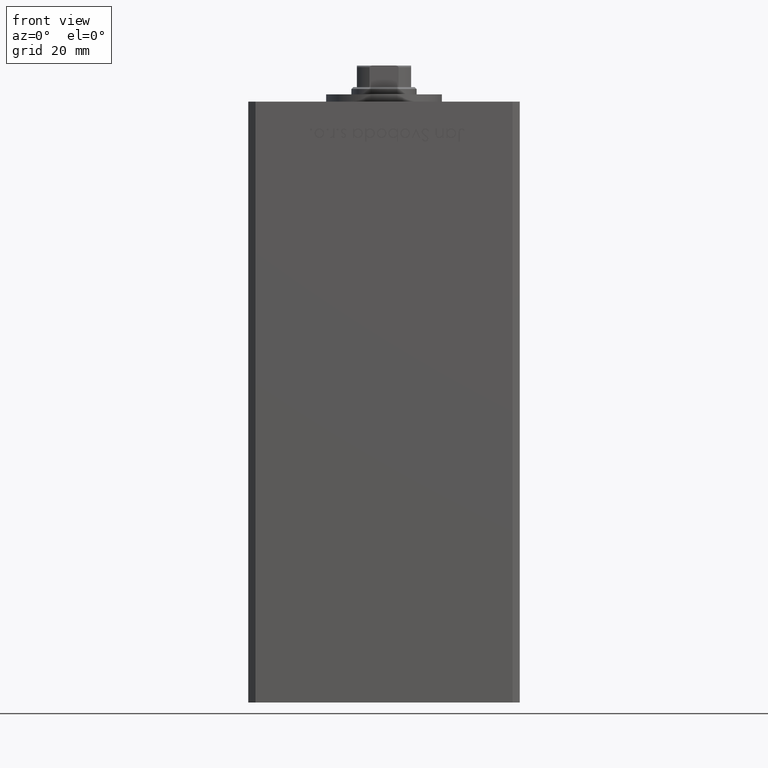
[diagram: clean part render]
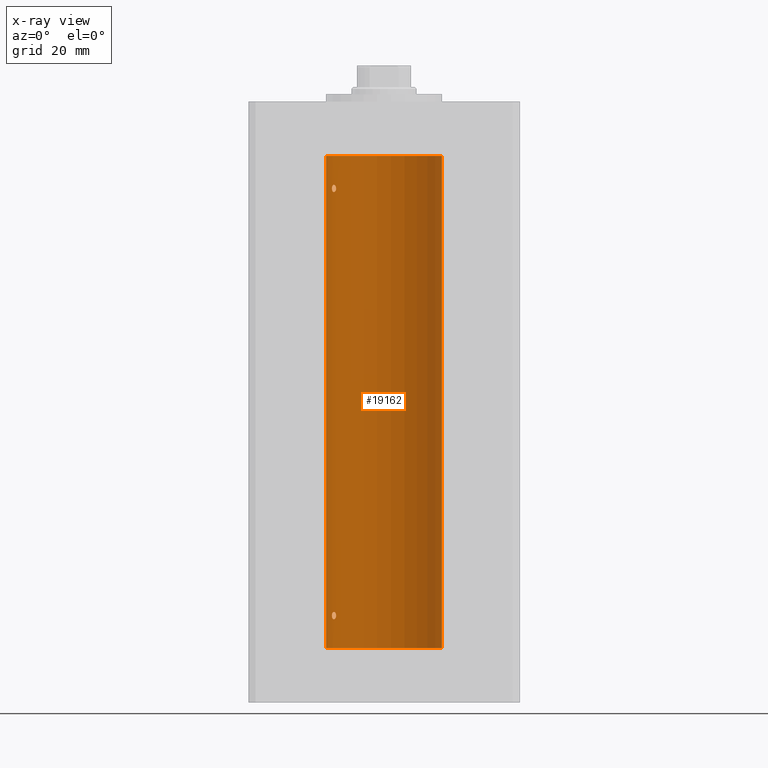
[diagram: x-ray — body ghosted, one internal face saturated and labeled with its STEP entity id]
A machine part, front view, then the same camera in x-ray: the body is ghosted and one INTERNAL B-rep face — a face not visible from any outside direction — is saturated and labeled: STEP entity #19162.
In plain terms, the highlighted cylindrical surface (partial cylindrical patch) has radius 16 mm, axis along (-0, -0, -1).
Its self-contained STEP definition (entity closure, byte-faithful):
#140 = CARTESIAN_POINT ( 'NONE',  ( -13.32457971225032622, 8.857769707964648020, 127.5319996627465571 ) ) ;
#826 = CARTESIAN_POINT ( 'NONE',  ( -13.56386909142669950, 8.487613976483636691, 8.118224297996075478 ) ) ;
#1594 = CIRCLE ( 'NONE', #28541, 16.00000000000000000 ) ;
#2212 = EDGE_CURVE ( 'NONE', #10926, #35852, #43245, .T. ) ;
#3980 = VERTEX_POINT ( 'NONE', #11845 ) ;
#4081 = CARTESIAN_POINT ( 'NONE',  ( -16.00000000000000000, 0.000000000000000000, 0.000000000000000000 ) ) ;
#4288 = LINE ( 'NONE', #15651, #36454 ) ;
#5604 = CARTESIAN_POINT ( 'NONE',  ( -13.91838063522421010, 7.892966471903945624, 125.9981483133086897 ) ) ;
#6130 = CARTESIAN_POINT ( 'NONE',  ( -13.56386909142669772, 8.487613976483636691, 126.1182242979960790 ) ) ;
#7062 = VERTEX_POINT ( 'NONE', #13688 ) ;
#8254 = DIRECTION ( 'NONE',  ( -0.000000000000000000, -0.000000000000000000, -1.000000000000000000 ) ) ;
#8490 = CARTESIAN_POINT ( 'NONE',  ( -13.98699950016872151, 7.770591669637119558, 8.018476816648481886 ) ) ;
#9278 = CARTESIAN_POINT ( 'NONE',  ( -13.37674940693422521, 8.779234808442870630, 8.360244157126784259 ) ) ;
#9595 = CARTESIAN_POINT ( 'NONE',  ( -14.31650799088418324, 7.144337649771912879, 9.535522627373689275 ) ) ;
#9679 = ORIENTED_EDGE ( 'NONE', *, *, #14620, .F. ) ;
#10313 = CARTESIAN_POINT ( 'NONE',  ( -13.25390108270225298, 8.962947079338388079, 8.721435762358455079 ) ) ;
#10464 = EDGE_CURVE ( 'NONE', #19845, #7062, #4288, .T. ) ;
#10617 = CARTESIAN_POINT ( 'NONE',  ( -13.49759407097375075, 8.592283911330223845, 126.1840991521276862 ) ) ;
#10926 = VERTEX_POINT ( 'NONE', #26070 ) ;
#11514 = CARTESIAN_POINT ( 'NONE',  ( -13.22875655532295802, 8.999999999999996447, 127.0000000000000000 ) ) ;
#11845 = CARTESIAN_POINT ( 'NONE',  ( -14.38749456993815912, 6.999999999999998224, 127.0000000000000000 ) ) ;
#12547 = CARTESIAN_POINT ( 'NONE',  ( -14.38749456993815734, 6.999999999999997335, 127.1426254415242454 ) ) ;
#13286 = CARTESIAN_POINT ( 'NONE',  ( -14.37227256866306213, 7.031482256185707769, 9.284457240976479397 ) ) ;
#13688 = CARTESIAN_POINT ( 'NONE',  ( 16.00000000000000000, 1.959434878635765131E-15, 0.000000000000000000 ) ) ;
#13745 = CARTESIAN_POINT ( 'NONE',  ( -13.22875655532295092, 8.999999999999994671, 8.929565622361636201 ) ) ;
#13784 = CARTESIAN_POINT ( 'NONE',  ( -14.38749456993815912, 6.999999999999998224, 127.0000000000000000 ) ) ;
#13807 = CARTESIAN_POINT ( 'NONE',  ( -13.22875655532295447, 8.999999999999996447, 9.000000000000000000 ) ) ;
#14061 = CARTESIAN_POINT ( 'NONE',  ( -16.00000000000000000, 0.000000000000000000, 136.0000000000000000 ) ) ;
#14448 = ORIENTED_EDGE ( 'NONE', *, *, #33705, .F. ) ;
#14569 = CARTESIAN_POINT ( 'NONE',  ( -13.98699950016872151, 7.770591669637114229, 126.0184768166484588 ) ) ;
#14620 = EDGE_CURVE ( 'NONE', #35852, #10926, #39255, .T. ) ;
#14826 = CARTESIAN_POINT ( 'NONE',  ( -13.32426099938365383, 8.858246960865844954, 126.4688748775329969 ) ) ;
#15651 = CARTESIAN_POINT ( 'NONE',  ( 16.00000000000000000, 1.959434878635765131E-15, 136.0000000000000000 ) ) ;
#15726 = CARTESIAN_POINT ( 'NONE',  ( -14.31650799088418147, 7.144337649771908438, 127.5355226273736662 ) ) ;
#15755 = CARTESIAN_POINT ( 'NONE',  ( 0.000000000000000000, 0.000000000000000000, 0.000000000000000000 ) ) ;
#16410 = CARTESIAN_POINT ( 'NONE',  ( -14.38749456993815556, 6.999999999999997335, 8.857147409635411250 ) ) ;
#16758 = CARTESIAN_POINT ( 'NONE',  ( -14.37227256866306213, 7.031482256185711321, 127.2844572409764794 ) ) ;
#17237 = CARTESIAN_POINT ( 'NONE',  ( -14.17576283486774535, 7.420212263225985261, 9.825253034304354927 ) ) ;
#18017 = CARTESIAN_POINT ( 'NONE',  ( -13.22875655532295447, 8.999999999999996447, 9.140644760917734146 ) ) ;
#18309 = FACE_BOUND ( 'NONE', #47657, .T. ) ;
#18569 = CARTESIAN_POINT ( 'NONE',  ( 0.000000000000000000, 0.000000000000000000, 136.0000000000000000 ) ) ;
#19099 = DIRECTION ( 'NONE',  ( -1.000000000000000000, 0.000000000000000000, 0.000000000000000000 ) ) ;
#19162 = ADVANCED_FACE ( 'NONE', ( #30954, #18309, #22777 ), #50475, .F. ) ;
#19190 = DIRECTION ( 'NONE',  ( 1.000000000000000000, 0.000000000000000000, 0.000000000000000000 ) ) ;
#19694 = AXIS2_PLACEMENT_3D ( 'NONE', #18569, #34644, #19099 ) ;
#19845 = VERTEX_POINT ( 'NONE', #32320 ) ;
#19889 = CARTESIAN_POINT ( 'NONE',  ( 0.000000000000000000, 0.000000000000000000, 136.0000000000000000 ) ) ;
#20637 = B_SPLINE_CURVE_WITH_KNOTS ( 'NONE', 3,
 ( #13784, #29856, #50680, #34855, #21675, #46736, #26159, #14569, #5604, #37779, #49899, #6130, #10617, #22725, #14826, #22201, #38304, #30901, #30378, #45942 ),
 .UNSPECIFIED., .F., .F.,
 ( 4, 2, 2, 2, 2, 2, 2, 2, 2, 4 ),
 ( 0.000000000000000000, 0.0004222090241339633240, 0.0008444180482679266480, 0.001266627072401889809, 0.001688836096535853296, 0.002111045120669816783, 0.002533254144803779619, 0.002955463168937742888, 0.003166567681004761603, 0.003377672193071779884 ),
 .UNSPECIFIED. ) ;
#20662 = EDGE_LOOP ( 'NONE', ( #34746, #29427, #21080, #14448 ) ) ;
#21080 = ORIENTED_EDGE ( 'NONE', *, *, #42944, .T. ) ;
#21376 = CARTESIAN_POINT ( 'NONE',  ( -16.00000000000000000, 0.000000000000000000, 136.0000000000000000 ) ) ;
#21675 = CARTESIAN_POINT ( 'NONE',  ( -14.27547848986622370, 7.226527013162184154, 126.3525557301815354 ) ) ;
#22201 = CARTESIAN_POINT ( 'NONE',  ( -13.26838749541400908, 8.941532915076043864, 126.6562177939213854 ) ) ;
#22725 = CARTESIAN_POINT ( 'NONE',  ( -13.37674940693422876, 8.779234808442867077, 126.3602441571267718 ) ) ;
#22777 = FACE_BOUND ( 'NONE', #50514, .T. ) ;
#22825 = ORIENTED_EDGE ( 'NONE', *, *, #2212, .F. ) ;
#23884 = CARTESIAN_POINT ( 'NONE',  ( -13.98878315975728803, 7.767347947480344850, 127.9805461432612645 ) ) ;
#24196 = AXIS2_PLACEMENT_3D ( 'NONE', #15755, #43701, #19190 ) ;
#24819 = CARTESIAN_POINT ( 'NONE',  ( -14.11621438951177332, 7.533308783217010252, 8.106571071839512754 ) ) ;
#25399 = CARTESIAN_POINT ( 'NONE',  ( -13.37741691572085934, 8.778212469423014142, 9.640882860227099727 ) ) ;
#25595 = CARTESIAN_POINT ( 'NONE',  ( -13.32426099938365027, 8.858246960865852060, 8.468874877532968526 ) ) ;
#25855 = CARTESIAN_POINT ( 'NONE',  ( -13.23400746336172951, 8.992294519018086518, 8.857814559023015732 ) ) ;
#26070 = CARTESIAN_POINT ( 'NONE',  ( -13.22875655532295447, 8.999999999999996447, 9.000000000000000000 ) ) ;
#26159 = CARTESIAN_POINT ( 'NONE',  ( -14.11621438951177687, 7.533308783217008475, 126.1065710718394826 ) ) ;
#26700 = LINE ( 'NONE', #14061, #47874 ) ;
#27579 = CARTESIAN_POINT ( 'NONE',  ( -13.55800260393081835, 8.498809056167509368, 127.9036434462101681 ) ) ;
#28091 = CARTESIAN_POINT ( 'NONE',  ( -13.24976519864029179, 8.969293778684573226, 127.2815352263351514 ) ) ;
#28541 = AXIS2_PLACEMENT_3D ( 'NONE', #19889, #47329, #51545 ) ;
#29095 = CARTESIAN_POINT ( 'NONE',  ( -13.70792461986390620, 8.256614593260307444, 9.996621535642271184 ) ) ;
#29358 = CARTESIAN_POINT ( 'NONE',  ( -14.38749456993816445, 6.999999999999997335, 9.142625441524202756 ) ) ;
#29374 = EDGE_CURVE ( 'NONE', #3980, #37736, #20637, .T. ) ;
#29427 = ORIENTED_EDGE ( 'NONE', *, *, #45218, .T. ) ;
#29856 = CARTESIAN_POINT ( 'NONE',  ( -14.38749456993816267, 6.999999999999999112, 126.8571474096354450 ) ) ;
#30079 = CARTESIAN_POINT ( 'NONE',  ( -13.49759407097374897, 8.592283911330223845, 8.184099152127670251 ) ) ;
#30378 = CARTESIAN_POINT ( 'NONE',  ( -13.22875655532295625, 8.999999999999994671, 126.9295656223616220 ) ) ;
#30901 = CARTESIAN_POINT ( 'NONE',  ( -13.23400746336172240, 8.992294519018086518, 126.8578145590230406 ) ) ;
#30954 = FACE_OUTER_BOUND ( 'NONE', #20662, .T. ) ;
#32320 = CARTESIAN_POINT ( 'NONE',  ( 16.00000000000000000, 1.959434878635765131E-15, 136.0000000000000000 ) ) ;
#32744 = CARTESIAN_POINT ( 'NONE',  ( -13.91838063522420832, 7.892966471903941184, 7.998148313308679036 ) ) ;
#32836 = CARTESIAN_POINT ( 'NONE',  ( -14.11618354197461400, 7.533333301880474231, 127.8932076519334373 ) ) ;
#32997 = CARTESIAN_POINT ( 'NONE',  ( -14.37250282441143767, 7.031013007322936659, 8.716856996037261496 ) ) ;
#33573 = CARTESIAN_POINT ( 'NONE',  ( -14.11618354197461400, 7.533333301880478672, 9.893207651933416003 ) ) ;
#33705 = EDGE_CURVE ( 'NONE', #7062, #47417, #41017, .T. ) ;
#34097 = CARTESIAN_POINT ( 'NONE',  ( -13.55800260393082546, 8.498809056167521803, 9.903643446210175227 ) ) ;
#34644 = DIRECTION ( 'NONE',  ( -0.000000000000000000, -0.000000000000000000, -1.000000000000000000 ) ) ;
#34746 = ORIENTED_EDGE ( 'NONE', *, *, #10464, .F. ) ;
#34855 = CARTESIAN_POINT ( 'NONE',  ( -14.31660136508398828, 7.144151923086063505, 126.4646217954444580 ) ) ;
#34870 = DIRECTION ( 'NONE',  ( -0.000000000000000000, -0.000000000000000000, -1.000000000000000000 ) ) ;
#34996 = EDGE_CURVE ( 'NONE', #37736, #3980, #49486, .T. ) ;
#35451 = ORIENTED_EDGE ( 'NONE', *, *, #34996, .F. ) ;
#35760 = CARTESIAN_POINT ( 'NONE',  ( -13.22875655532296157, 8.999999999999994671, 127.1406447609177661 ) ) ;
#35852 = VERTEX_POINT ( 'NONE', #46598 ) ;
#36275 = CARTESIAN_POINT ( 'NONE',  ( -13.37741691572086111, 8.778212469423007036, 127.6408828602271512 ) ) ;
#36436 = CARTESIAN_POINT ( 'NONE',  ( -14.38749456993815912, 6.999999999999997335, 9.000000000000000000 ) ) ;
#36454 = VECTOR ( 'NONE', #8254, 1000.000000000000000 ) ;
#36962 = CARTESIAN_POINT ( 'NONE',  ( -13.70481462797718031, 8.258098555717506173, 8.025997477291133109 ) ) ;
#37198 = CARTESIAN_POINT ( 'NONE',  ( -13.22875655532295802, 8.999999999999996447, 127.0000000000000000 ) ) ;
#37277 = CARTESIAN_POINT ( 'NONE',  ( -13.98878315975729159, 7.767347947480346626, 9.980546143261280534 ) ) ;
#37736 = VERTEX_POINT ( 'NONE', #37198 ) ;
#37779 = CARTESIAN_POINT ( 'NONE',  ( -13.77582987033440709, 8.139210687602719929, 126.0021105458418162 ) ) ;
#37803 = CARTESIAN_POINT ( 'NONE',  ( -14.27521483392929014, 7.227035590538633869, 9.647859870688195727 ) ) ;
#38304 = CARTESIAN_POINT ( 'NONE',  ( -13.25390108270225120, 8.962947079338391632, 126.7214357623584817 ) ) ;
#39255 = B_SPLINE_CURVE_WITH_KNOTS ( 'NONE', 3,
 ( #36436, #16410, #32997, #45126, #44610, #44091, #24819, #8490, #32744, #48830, #36962, #826, #30079, #9278, #25595, #41423, #10313, #25855, #13745, #46165 ),
 .UNSPECIFIED., .F., .F.,
 ( 4, 2, 2, 2, 2, 2, 2, 2, 2, 4 ),
 ( 0.000000000000000000, 0.0004222090241339719976, 0.0008444180482679439952, 0.001266627072401915830, 0.001688836096535887990, 0.002111045120669860151, 0.002533254144803831660, 0.002955463168937803604, 0.003166567681004790660, 0.003377672193071777282 ),
 .UNSPECIFIED. ) ;
#39723 = CARTESIAN_POINT ( 'NONE',  ( -13.70792461986390798, 8.256614593260307444, 127.9966215356423191 ) ) ;
#40740 = CARTESIAN_POINT ( 'NONE',  ( -14.27521483392928836, 7.227035590538638310, 127.6478598706881371 ) ) ;
#41017 = CIRCLE ( 'NONE', #24196, 16.00000000000000000 ) ;
#41423 = CARTESIAN_POINT ( 'NONE',  ( -13.26838749541400198, 8.941532915076040311, 8.656217793921369363 ) ) ;
#41741 = CARTESIAN_POINT ( 'NONE',  ( -13.32457971225032445, 8.857769707964649797, 9.531999662746555302 ) ) ;
#42944 = EDGE_CURVE ( 'NONE', #43118, #47417, #26700, .T. ) ;
#43118 = VERTEX_POINT ( 'NONE', #21376 ) ;
#43245 = B_SPLINE_CURVE_WITH_KNOTS ( 'NONE', 3,
 ( #13807, #18017, #49661, #41741, #25399, #34097, #29095, #49406, #37277, #33573, #17237, #37803, #9595, #13286, #29358, #45441 ),
 .UNSPECIFIED., .F., .F.,
 ( 4, 2, 2, 2, 2, 2, 2, 4 ),
 ( 0.003377672193071777282, 0.003799209865779874882, 0.004220747538487972482, 0.005063822883904168549, 0.005485360556612268318, 0.005906898229320367219, 0.006328435902028466120, 0.006749973574736565889 ),
 .UNSPECIFIED. ) ;
#43669 = CARTESIAN_POINT ( 'NONE',  ( -13.91892506969882071, 7.891973478508848672, 128.0015521226323472 ) ) ;
#43701 = DIRECTION ( 'NONE',  ( -0.000000000000000000, 0.000000000000000000, 1.000000000000000000 ) ) ;
#43931 = CARTESIAN_POINT ( 'NONE',  ( -14.38749456993815912, 6.999999999999998224, 127.0000000000000000 ) ) ;
#44091 = CARTESIAN_POINT ( 'NONE',  ( -14.17528142432533755, 7.421143801852455368, 8.173943073538659121 ) ) ;
#44187 = CARTESIAN_POINT ( 'NONE',  ( -14.17576283486774891, 7.420212263225987925, 127.8252530343043958 ) ) ;
#44610 = CARTESIAN_POINT ( 'NONE',  ( -14.27547848986622014, 7.226527013162185931, 8.352555730181528304 ) ) ;
#45126 = CARTESIAN_POINT ( 'NONE',  ( -14.31660136508399184, 7.144151923086058176, 8.464621795444474017 ) ) ;
#45218 = EDGE_CURVE ( 'NONE', #19845, #43118, #1594, .T. ) ;
#45441 = CARTESIAN_POINT ( 'NONE',  ( -14.38749456993815912, 6.999999999999997335, 9.000000000000000000 ) ) ;
#45942 = CARTESIAN_POINT ( 'NONE',  ( -13.22875655532295802, 8.999999999999996447, 127.0000000000000000 ) ) ;
#46165 = CARTESIAN_POINT ( 'NONE',  ( -13.22875655532295447, 8.999999999999996447, 9.000000000000000000 ) ) ;
#46193 = ORIENTED_EDGE ( 'NONE', *, *, #29374, .F. ) ;
#46598 = CARTESIAN_POINT ( 'NONE',  ( -14.38749456993815912, 6.999999999999997335, 9.000000000000000000 ) ) ;
#46736 = CARTESIAN_POINT ( 'NONE',  ( -14.17528142432533755, 7.421143801852455368, 126.1739430735386520 ) ) ;
#47329 = DIRECTION ( 'NONE',  ( -0.000000000000000000, 0.000000000000000000, 1.000000000000000000 ) ) ;
#47417 = VERTEX_POINT ( 'NONE', #4081 ) ;
#47657 = EDGE_LOOP ( 'NONE', ( #9679, #22825 ) ) ;
#47874 = VECTOR ( 'NONE', #34870, 1000.000000000000000 ) ;
#48830 = CARTESIAN_POINT ( 'NONE',  ( -13.77582987033441064, 8.139210687602712824, 8.002110545841816247 ) ) ;
#49406 = CARTESIAN_POINT ( 'NONE',  ( -13.91892506969882959, 7.891973478508852224, 10.00155212263243953 ) ) ;
#49486 = B_SPLINE_CURVE_WITH_KNOTS ( 'NONE', 3,
 ( #11514, #35760, #28091, #140, #36275, #27579, #39723, #43669, #23884, #32836, #44187, #40740, #15726, #16758, #12547, #43931 ),
 .UNSPECIFIED., .F., .F.,
 ( 4, 2, 2, 2, 2, 2, 2, 4 ),
 ( 0.003377672193071779884, 0.003799209865779855366, 0.004220747538487930849, 0.005063822883904134722, 0.005485360556612237093, 0.005906898229320339463, 0.006328435902028442701, 0.006749973574736545072 ),
 .UNSPECIFIED. ) ;
#49661 = CARTESIAN_POINT ( 'NONE',  ( -13.24976519864029179, 8.969293778684576779, 9.281535226335156707 ) ) ;
#49899 = CARTESIAN_POINT ( 'NONE',  ( -13.70481462797717676, 8.258098555717509726, 126.0259974772911562 ) ) ;
#50475 = CYLINDRICAL_SURFACE ( 'NONE', #19694, 16.00000000000000000 ) ;
#50514 = EDGE_LOOP ( 'NONE', ( #46193, #35451 ) ) ;
#50680 = CARTESIAN_POINT ( 'NONE',  ( -14.37250282441143945, 7.031013007322939323, 126.7168569960372935 ) ) ;
#51545 = DIRECTION ( 'NONE',  ( 1.000000000000000000, 0.000000000000000000, 0.000000000000000000 ) ) ;